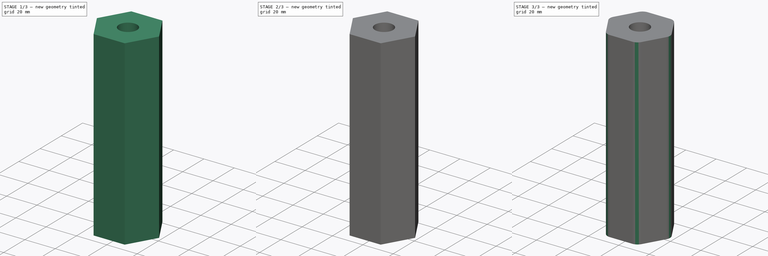
[diagram: build sequence overview — one tinted view per stage of 3, left to right]
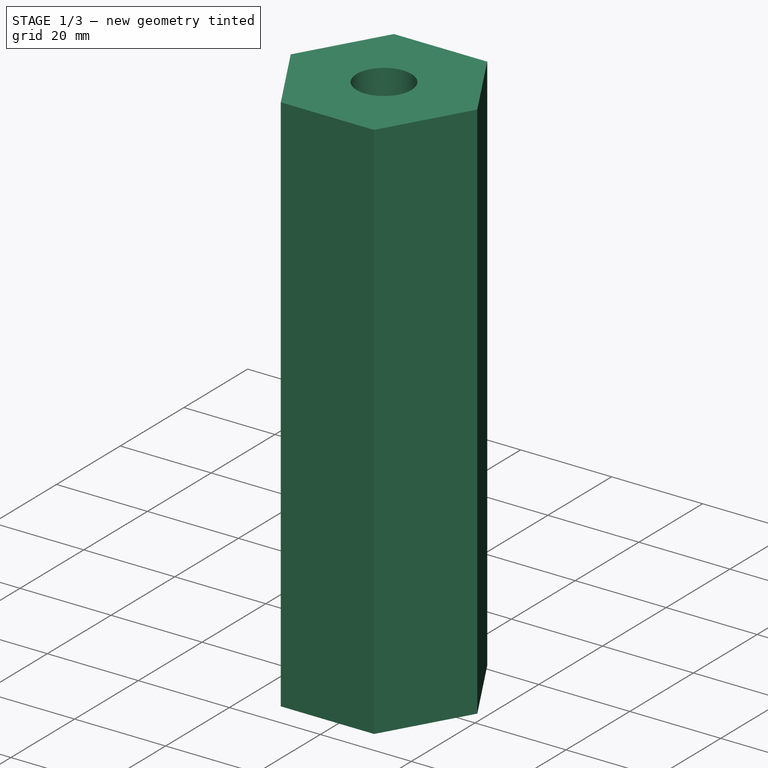
[diagram: stage 1 of 3 — iso view after this stage's code; geometry added in this stage tinted green]
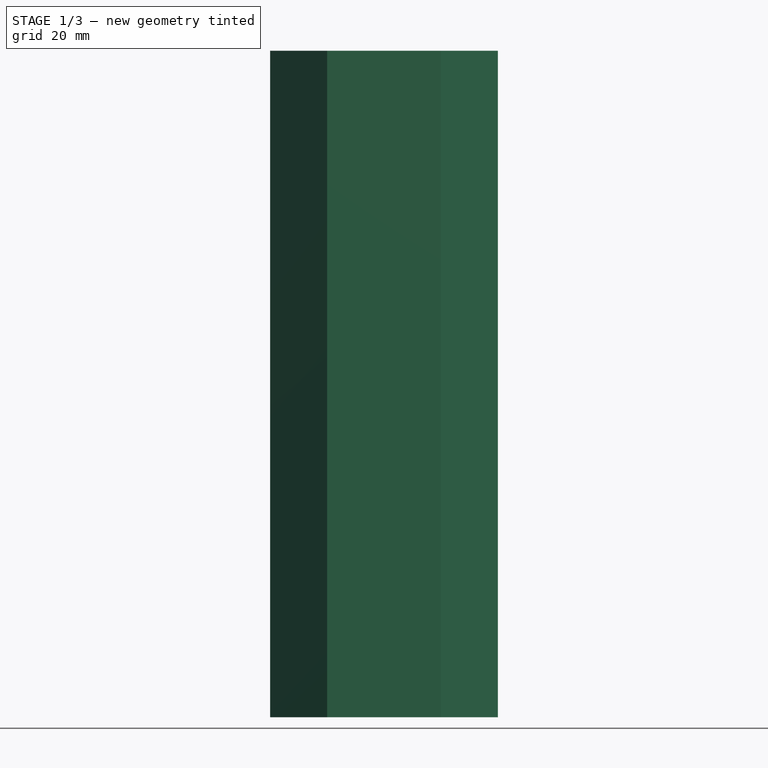
[diagram: stage 1 of 3 — front view after this stage's code; geometry added in this stage tinted green]
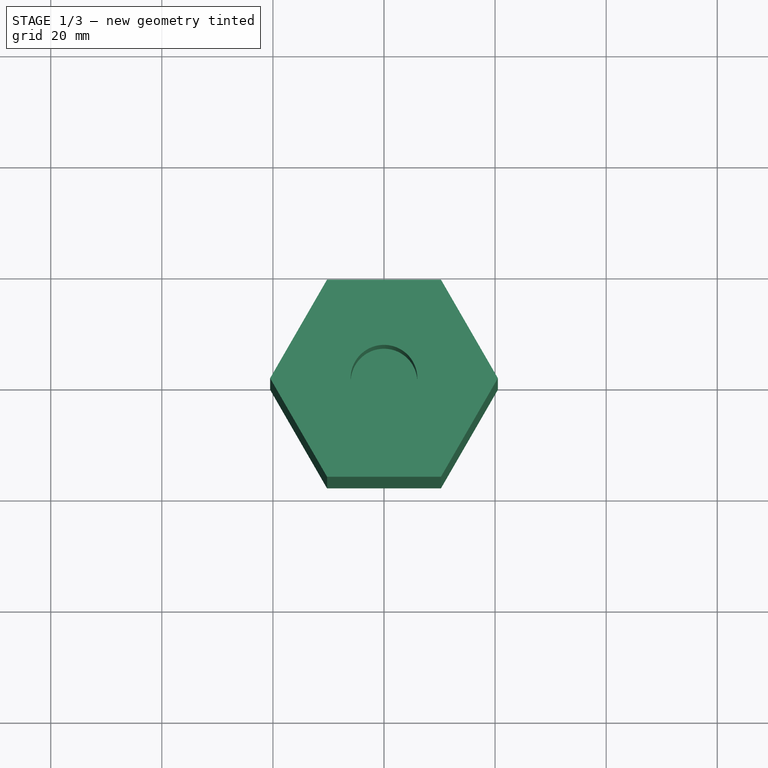
[diagram: stage 1 of 3 — top view after this stage's code; geometry added in this stage tinted green]
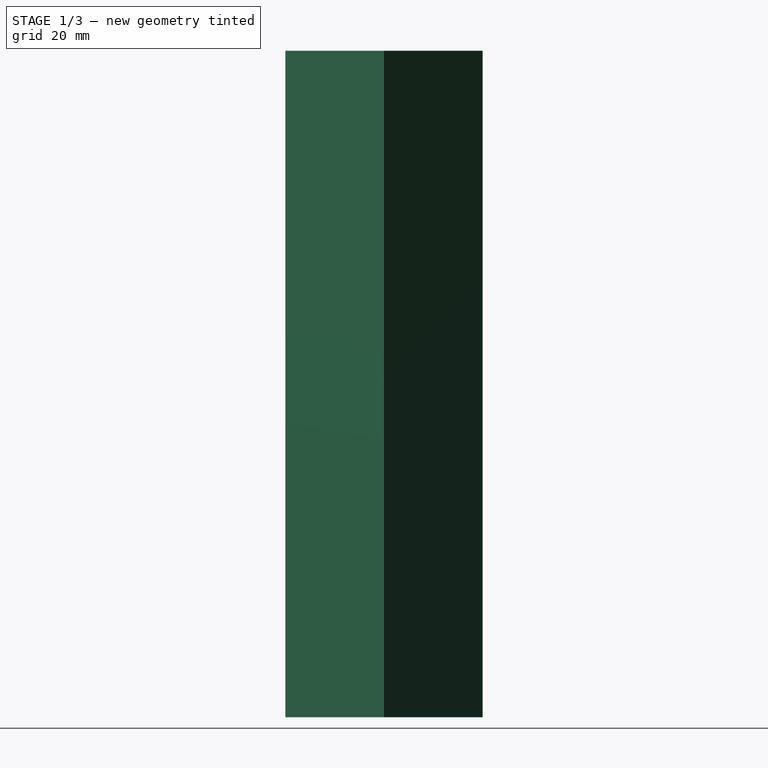
[diagram: stage 1 of 3 — right view after this stage's code; geometry added in this stage tinted green]
FCSTD DOCUMENT  (FreeCAD 0.17R7732 (Git))
Label: 12mm_drill_handle
License: CreativeCommons Attribution-ShareAlike
LicenseURL: http://creativecommons.org/licenses/by-sa/4.0/
objects: Sketcher::SketchObject×5, PartDesign::Pocket×4, PartDesign::Pad×1, PartDesign::Fillet×1, PartDesign::Body×1
note: 17 computed .brp shape members not serialized (recipe doc carries the construction recipe); baked Part::Feature solids carry a one-line shape summary decoded from their .brp

FEATURE [Sketcher::SketchObject] Sketch
  MapMode = 5
  Support = -> [XY_Plane]
  sketch-geometry (7):
    g0: LineSegment StartX=10.25 StartY=-17.7535 StartZ=0 EndX=20.5 EndY=0 EndZ=0
    g1: LineSegment StartX=20.5 StartY=0 StartZ=0 EndX=10.25 EndY=17.7535 EndZ=0
    g2: LineSegment StartX=10.25 StartY=17.7535 StartZ=0 EndX=-10.25 EndY=17.7535 EndZ=0
    g3: LineSegment StartX=-10.25 StartY=17.7535 StartZ=0 EndX=-20.5 EndY=0 EndZ=0
    g4: LineSegment StartX=-20.5 StartY=0 StartZ=0 EndX=-10.25 EndY=-17.7535 EndZ=0
    g5: LineSegment StartX=-10.25 StartY=-17.7535 StartZ=0 EndX=10.25 EndY=-17.7535 EndZ=0
    g6: Circle [constr] CenterX=0 CenterY=0 CenterZ=0 NormalX=0 NormalY=0 NormalZ=1 Radius=20.5
  constraints (16):
    c: Coincident(g0,g1)
    c: Coincident(g1,g2)
    c: Coincident(g2,g3)
    c: Coincident(g3,g4)
    c: Coincident(g4,g5)
    c: Coincident(g5,g0)
    c: Equal(g0, g1-g5) x5
    c: PointOnObject(g0,g6)
    c: PointOnObject(g1,g6)
    c: PointOnObject(g2,g6)
    c: PointOnObject(g3,g6)
    c: PointOnObject(g4,g6)
    c: PointOnObject(g5,g6)
    c: Coincident(g6,g-1)
    c: Horizontal(g5)
    c: Radius(g6) = 20.5
FEATURE [PartDesign::Pad] Pad
  Length = 120
  Length2 = 100
  Profile = -> Sketch
  Type = 0
FEATURE [Sketcher::SketchObject] Sketch001
  MapMode = 5
  Placement = pos=(0,0,120) rot=(0,0,1;0rad)
  Support = -> [Pad]
  sketch-geometry (1):
    g0: Circle CenterX=0 CenterY=0 CenterZ=0 NormalX=0 NormalY=0 NormalZ=1 Radius=6
  constraints (2):
    c: Coincident(g0,g-1)
    c: Radius(g0) = 6
FEATURE [PartDesign::Pocket] Pocket
  BaseFeature = -> Pad
  Length = 40
  Profile = -> Sketch001
  Type = 0
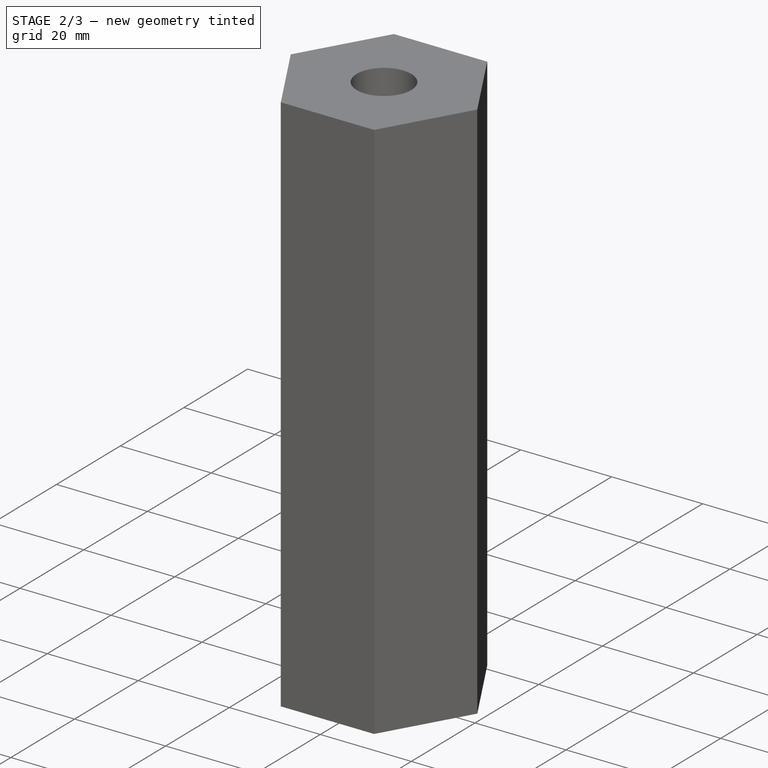
[diagram: stage 2 of 3 — iso view after this stage's code; geometry added in this stage tinted green]
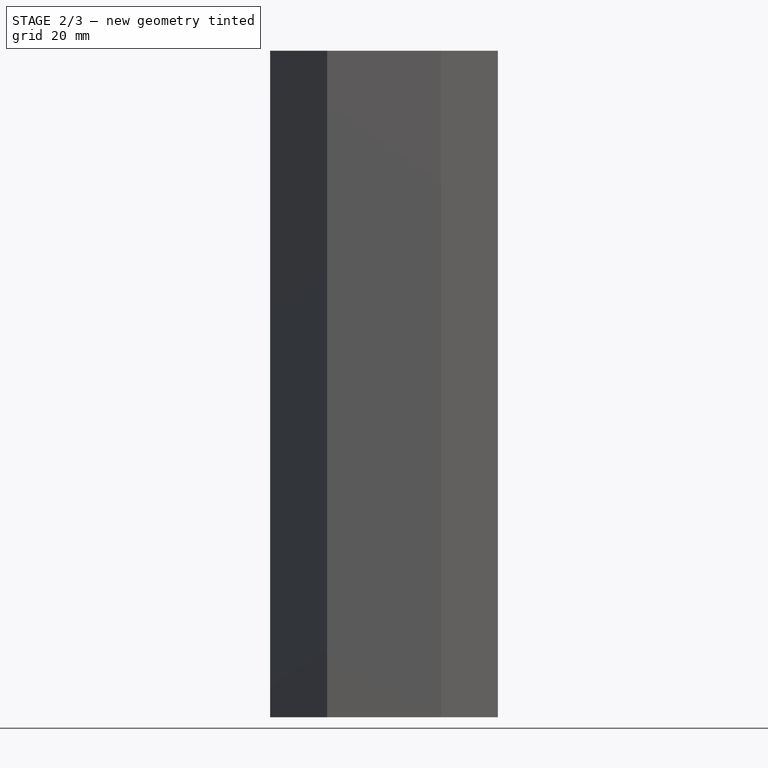
[diagram: stage 2 of 3 — front view after this stage's code; geometry added in this stage tinted green]
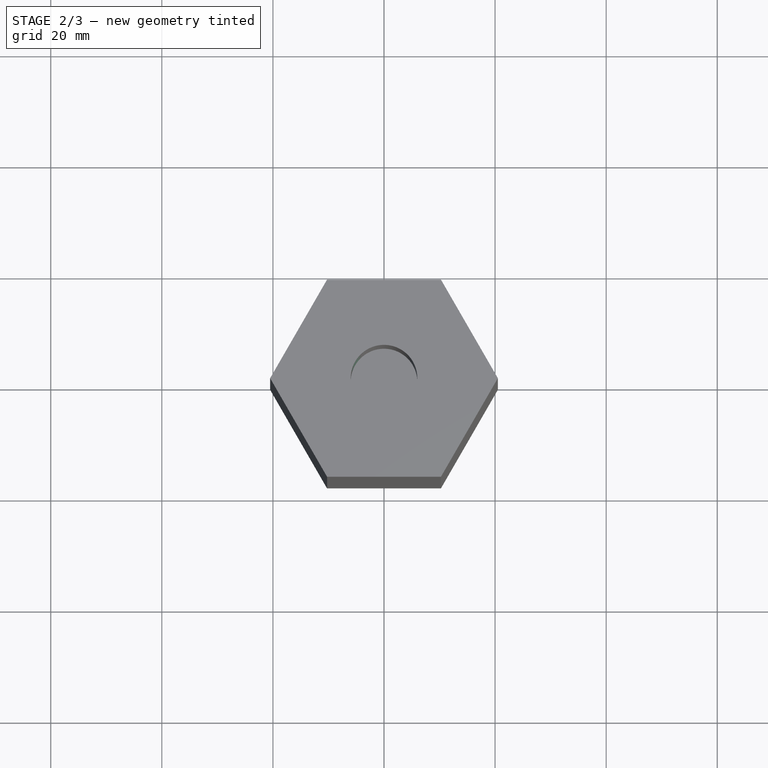
[diagram: stage 2 of 3 — top view after this stage's code; geometry added in this stage tinted green]
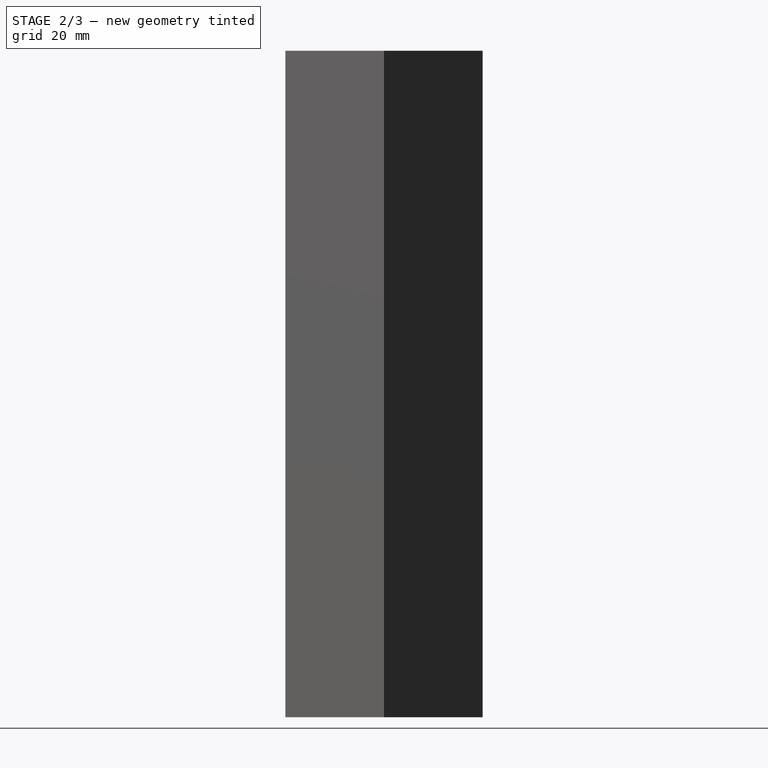
[diagram: stage 2 of 3 — right view after this stage's code; geometry added in this stage tinted green]
FEATURE [Sketcher::SketchObject] Sketch002
  MapMode = 5
  Placement = pos=(-15.375,8.87676,0) rot=(-0.377964,0.654654,0.654654;3.86433rad)
  Support = -> [Pocket]
  sketch-geometry (4):
    g0: Circle CenterX=-3.77921e-05 CenterY=110 CenterZ=0 NormalX=0 NormalY=0 NormalZ=1 Radius=1.7
    g1: Circle CenterX=0 CenterY=97.5 CenterZ=0 NormalX=0 NormalY=0 NormalZ=1 Radius=1.7
    g2: Circle CenterX=-0.000427349 CenterY=85 CenterZ=0 NormalX=0 NormalY=0 NormalZ=1 Radius=1.7
    g3: LineSegment [constr] StartX=-0.000427349 StartY=85 StartZ=0 EndX=-3.77921e-05 EndY=110 EndZ=0
  constraints (8):
    c: Radius(g1) = 1.7
    c: Equal(g1,g0)
    c: Equal(g1,g2)
    c: Distance(g3) = 25
    c: DistanceY(g-1,g3) = 85
    c: Coincident(g2,g3)
    c: Coincident(g0,g3)
    c: DistanceY(g2,g1) = 12.5
FEATURE [PartDesign::Pocket] Pocket001
  BaseFeature = -> Pocket
  Length = 14
  Profile = -> Sketch002
  Type = 0
FEATURE [Sketcher::SketchObject] Sketch003
  ExternalGeometry = -> [Pocket001]
  MapMode = 5
  Placement = pos=(-15.375,8.87676,0) rot=(-0.377964,0.654654,0.654654;3.86433rad)
  Support = -> [Pocket001]
  sketch-geometry (3):
    g0: Circle CenterX=-0.000427349 CenterY=85 CenterZ=0 NormalX=0 NormalY=0 NormalZ=1 Radius=3
    g1: Circle CenterX=0 CenterY=97.5 CenterZ=0 NormalX=0 NormalY=0 NormalZ=1 Radius=3
    g2: Circle CenterX=-3.77921e-05 CenterY=110 CenterZ=0 NormalX=0 NormalY=0 NormalZ=1 Radius=3
  constraints (6):
    c: Radius(g2) = 3
    c: Equal(g2,g0)
    c: Equal(g2,g1)
    c: Coincident(g2,g-5)
    c: Coincident(g1,g-4)
    c: Coincident(g0,g-3)
FEATURE [PartDesign::Pocket] Pocket002
  BaseFeature = -> Pocket001
  Length = 3
  Profile = -> Sketch003
  Type = 0
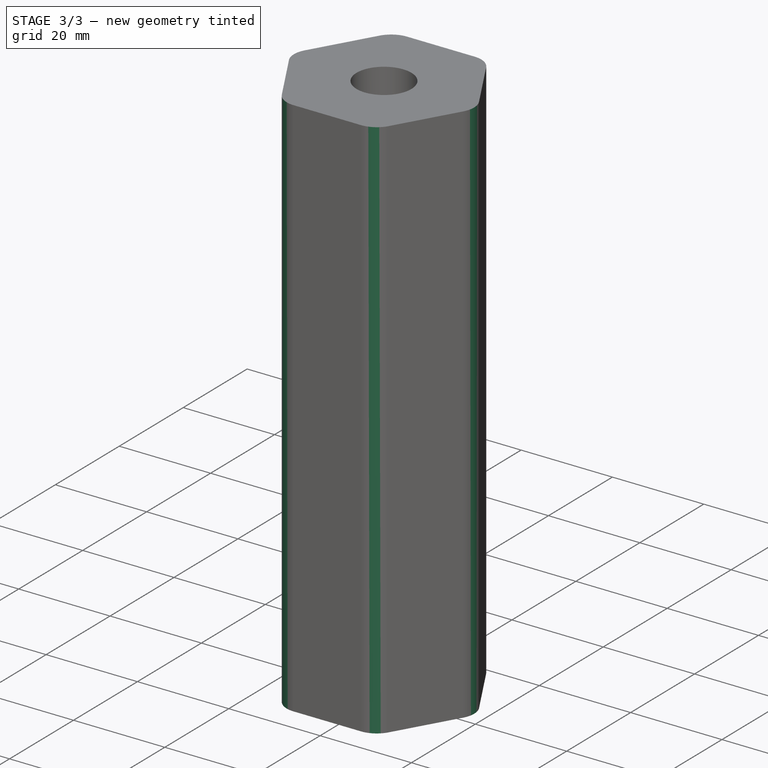
[diagram: stage 3 of 3 — iso view after this stage's code; geometry added in this stage tinted green]
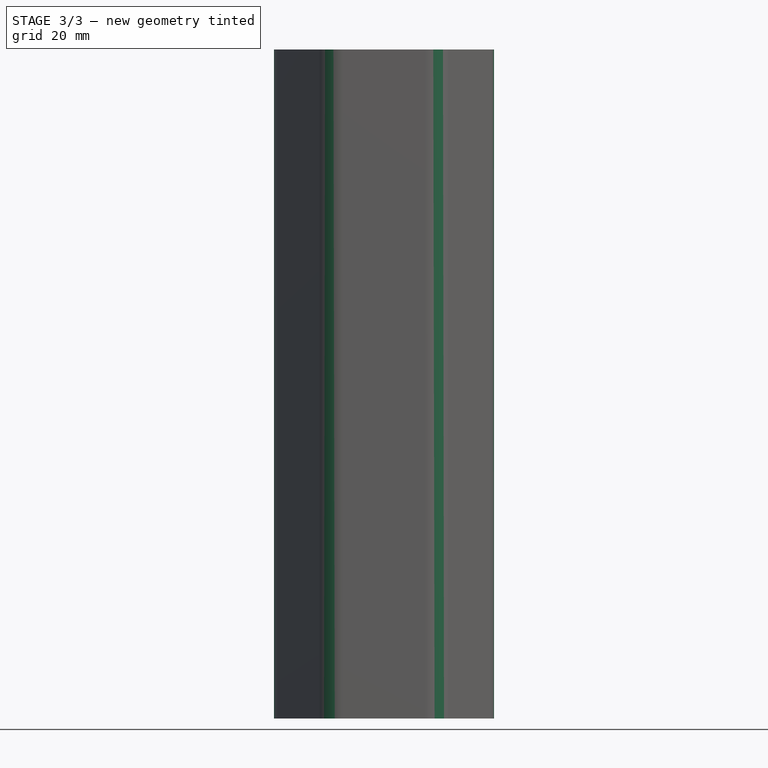
[diagram: stage 3 of 3 — front view after this stage's code; geometry added in this stage tinted green]
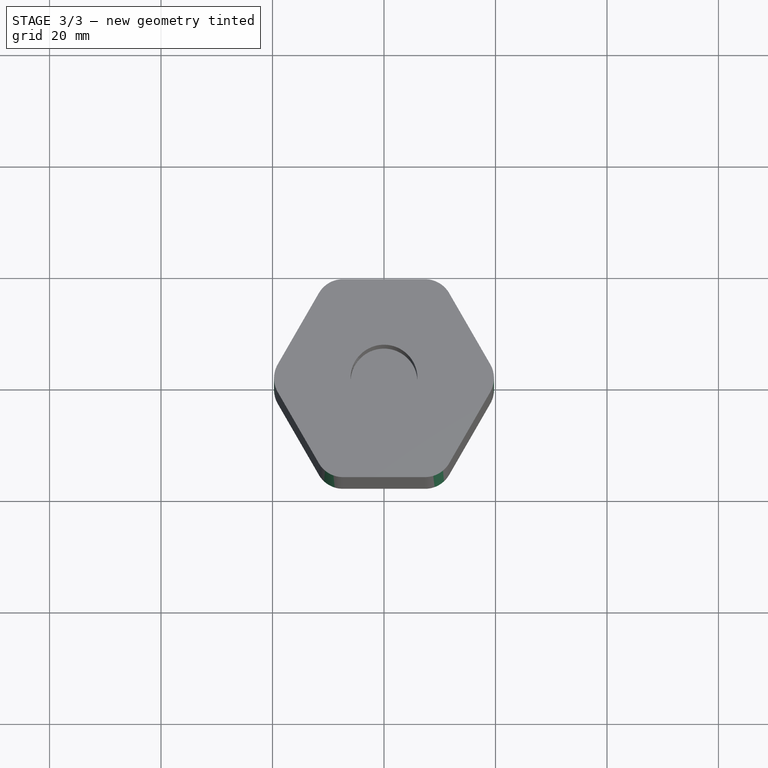
[diagram: stage 3 of 3 — top view after this stage's code; geometry added in this stage tinted green]
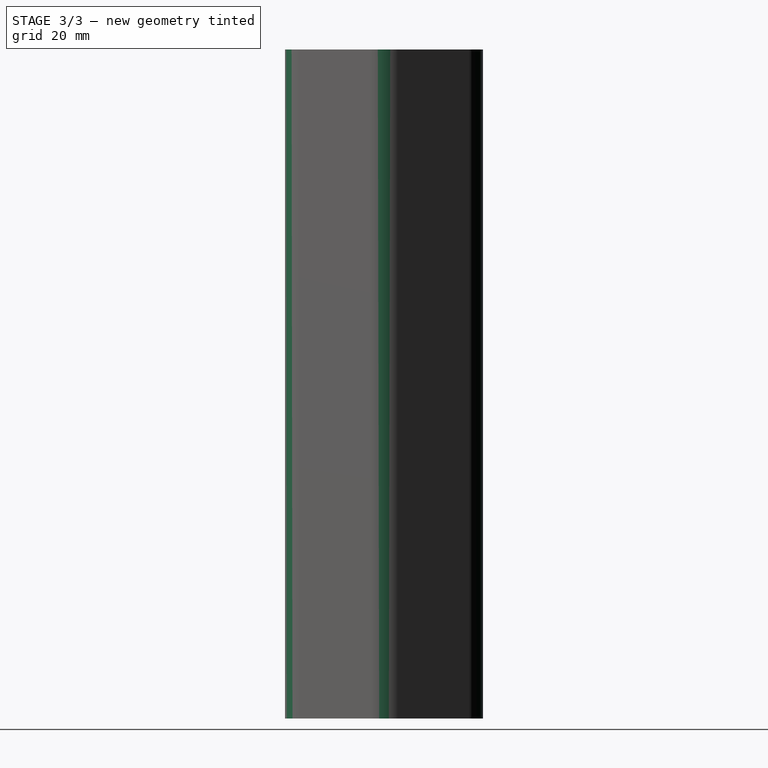
[diagram: stage 3 of 3 — right view after this stage's code; geometry added in this stage tinted green]
FEATURE [Sketcher::SketchObject] Sketch004
  ExternalGeometry = -> [Pocket002]
  MapMode = 5
  Placement = pos=(-12.7769,7.37676,0) rot=(-0.377964,0.654654,0.654654;3.86433rad)
  Support = -> [Pocket002]
  sketch-geometry (3):
    g0: Circle CenterX=-0.000427349 CenterY=85 CenterZ=0 NormalX=0 NormalY=0 NormalZ=1 Radius=2.2
    g1: Circle CenterX=-3.77921e-05 CenterY=110 CenterZ=0 NormalX=0 NormalY=0 NormalZ=1 Radius=2.2
    g2: Circle CenterX=0 CenterY=97.5 CenterZ=0 NormalX=0 NormalY=0 NormalZ=1 Radius=2.2
  constraints (6):
    c: Coincident(g1,g-4)
    c: Coincident(g0,g-3)
    c: Coincident(g2,g-5)
    c: Radius(g2) = 2.2
    c: Equal(g2,g1)
    c: Equal(g2,g0)
FEATURE [PartDesign::Pocket] Pocket003
  BaseFeature = -> Pocket002
  Length = 5
  Profile = -> Sketch004
  Type = 0
FEATURE [PartDesign::Fillet] Fillet
  Base = -> Pocket003 [Edge2,Edge18,Edge1,Edge5,Edge19,Edge8]
  BaseFeature = -> Pocket003
  Radius = 5
FEATURE [PartDesign::Body] Body
  Model = -> [Sketch,Pad,Sketch001,Pocket,Sketch002,Pocket001,Sketch003,Pocket002,Sketch004,Pocket003,Fillet]
  Origin = -> BodyOrigin
  Tip = -> Fillet
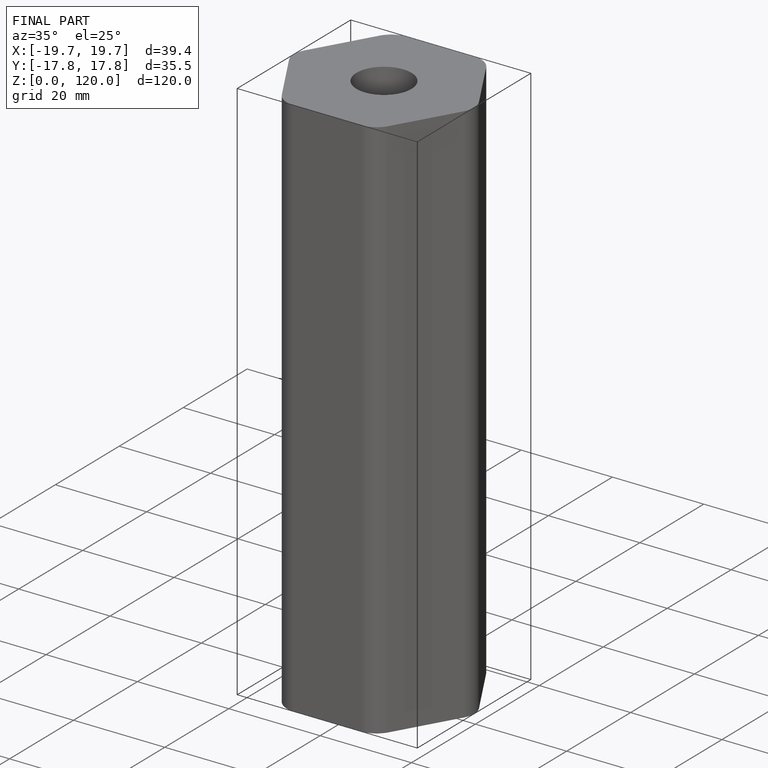
[diagram: finished part — iso view with bounding-box wireframe]
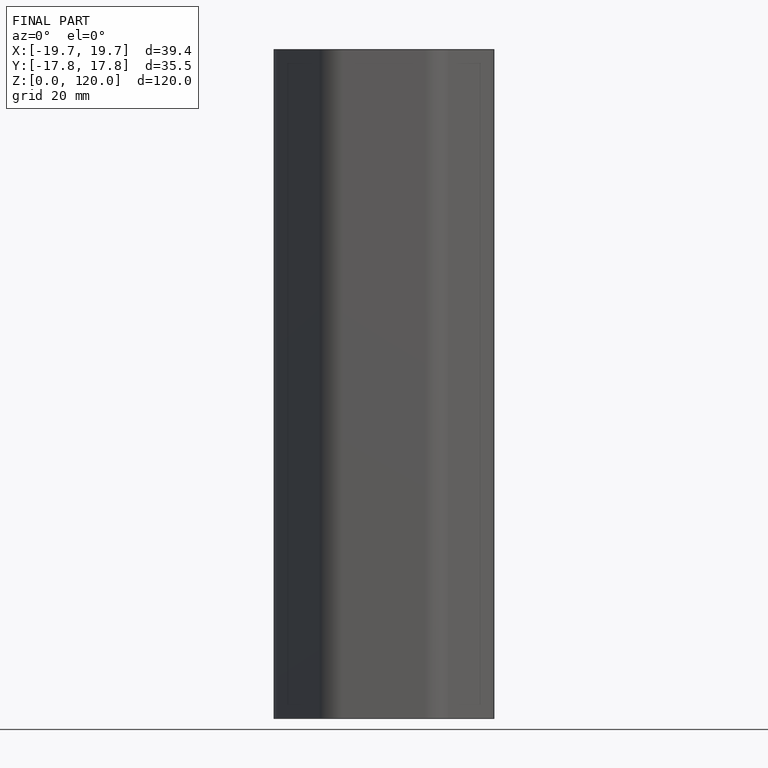
[diagram: finished part — front view with bounding-box wireframe]
